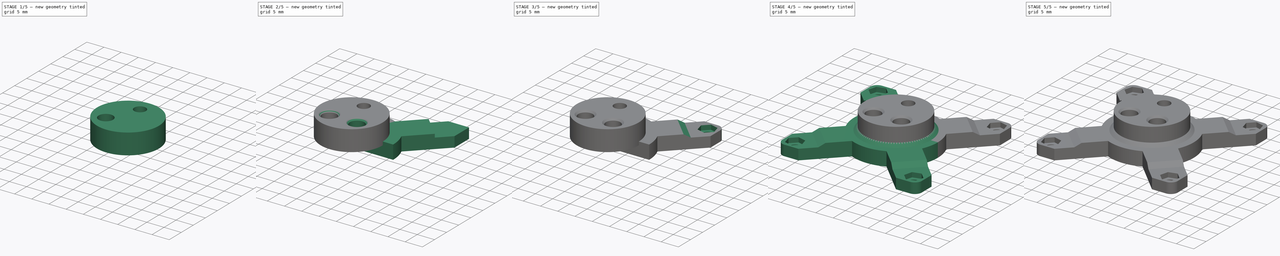
[diagram: build sequence overview — one tinted view per stage of 5, left to right]
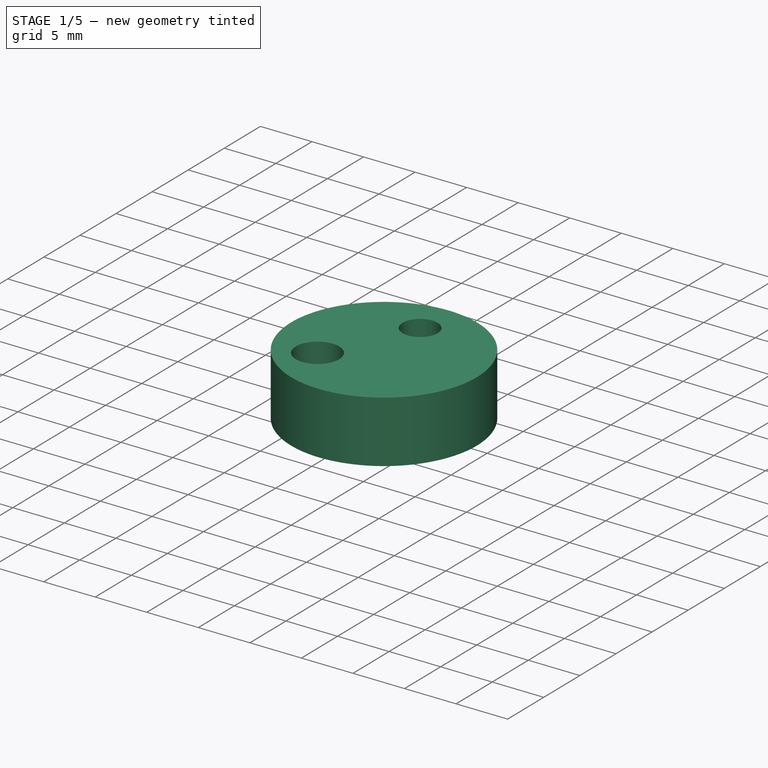
[diagram: stage 1 of 5 — iso view after this stage's code; geometry added in this stage tinted green]
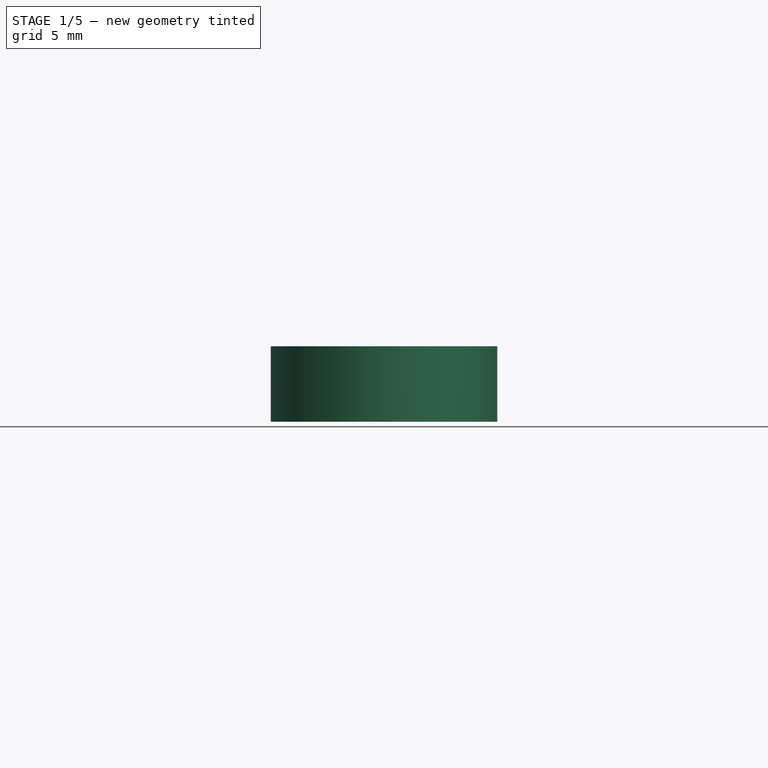
[diagram: stage 1 of 5 — front view after this stage's code; geometry added in this stage tinted green]
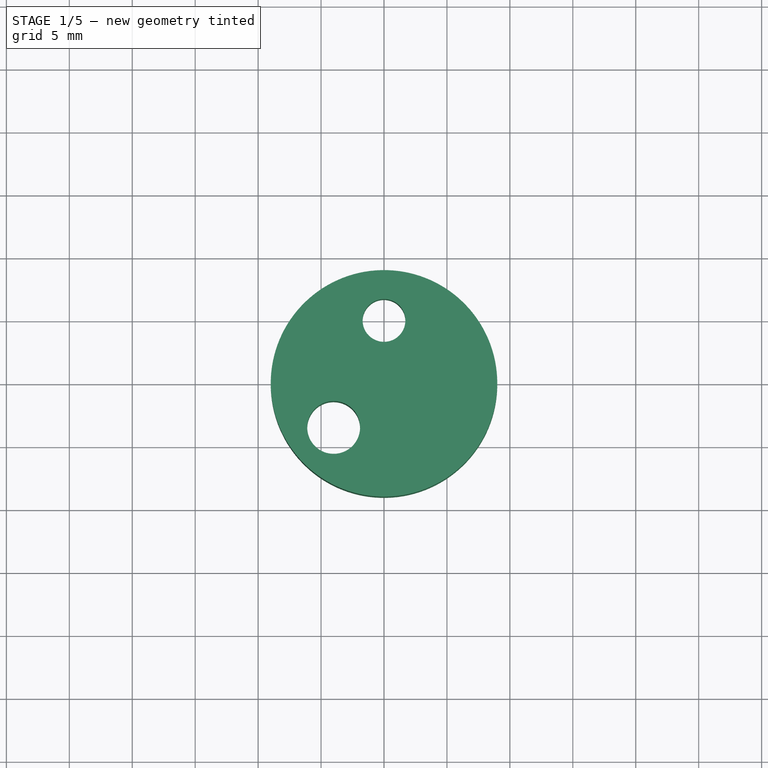
[diagram: stage 1 of 5 — top view after this stage's code; geometry added in this stage tinted green]
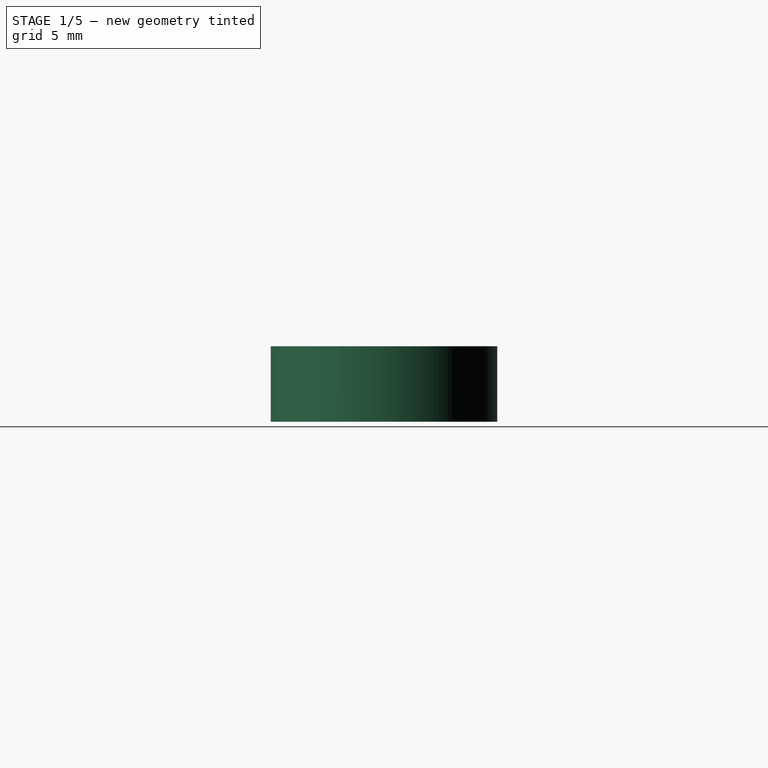
[diagram: stage 1 of 5 — right view after this stage's code; geometry added in this stage tinted green]
FCSTD DOCUMENT  (FreeCAD 0.19R)
Label: flower_direct_workbench
License: All rights reserved
LicenseURL: http://en.wikipedia.org/wiki/All_rights_reserved
objects: Sketcher::SketchObject×11, PartDesign::Pocket×9, PartDesign::ShapeBinder×4, PartDesign::Hole×3, PartDesign::Pad×2, PartDesign::Mirrored×2, PartDesign::Body×2, PartDesign::Fillet×1, PartDesign::PolarPattern×1, PartDesign::Revolution×1, PartDesign::Chamfer×1
note: 54 computed .brp shape members not serialized (recipe doc carries the construction recipe); baked Part::Feature solids carry a one-line shape summary decoded from their .brp

FEATURE [Sketcher::SketchObject] Sketch007  label="rod_base_sk"
  FullyConstrained = true
  MapMode = 5
  Support = -> [XY_Plane001]
  sketch-geometry (1):
    g0: Circle CenterX=0 CenterY=0 CenterZ=0 NormalX=0 NormalY=0 NormalZ=1 AngleXU=0 Radius=9
  constraints (2):
    c: Coincident(g0,g-1)
    c: Radius(g0) = 9
FEATURE [PartDesign::Pad] Pad001  label="rod_base"
  Direction = (1,1,1)
  Length = 12
  Length2 = -6
  Profile = -> Sketch007
  Type = 4
FEATURE [Sketcher::SketchObject] Sketch008  label="M3_hole_sk"
  FullyConstrained = true
  MapMode = 5
  Placement = pos=(0,0,12) rot=(0,0,1;0rad)
  Support = -> [Pad001]
  sketch-geometry (1):
    g0: Circle CenterX=0 CenterY=5 CenterZ=0 NormalX=0 NormalY=0 NormalZ=1 AngleXU=0 Radius=1
  constraints (3):
    c: PointOnObject(g0,g-2)
    c: DistanceY(g-1,g0) = 5
    c: Radius(g0) = 1
FEATURE [PartDesign::Hole] Hole001  label="ped_M3_hole"
  BaseFeature = -> Pad001
  Depth = 1
  DepthType = 1
  Diameter = 3.4
  DrillForDepth = false
  DrillPoint = 1
  DrillPointAngle = 118
  HoleCutCountersinkAngle = 90
  HoleCutCustomValues = false
  HoleCutDepth = 0
  HoleCutDiameter = 6.1
  HoleCutType = 0
  ModelActualThread = false
  Profile = -> Sketch008
  Tapered = false
  TaperedAngle = 90
  ThreadAngle = 0
  ThreadClass = 0
  ThreadCutOffInner = 0
  ThreadCutOffOuter = 0
  ThreadDirection = 0
  ThreadFit = 0
  ThreadPitch = 0
  ThreadSize = 9
  ThreadType = 1
  Threaded = false
FEATURE [PartDesign::Pocket] Pocket006  label="ped_M3_clearance"
  BaseFeature = -> Hole001
  Length = 100
  Length2 = -5
  Profile = -> Sketch009
  Type = 4
FEATURE [Sketcher::SketchObject] Sketch010  label="dowel_hole_sk"
  ExternalGeometry = -> [Pocket006]
  FullyConstrained = true
  MapMode = 5
  Placement = pos=(0,0,12) rot=(0,0,1;0rad)
  Support = -> [Pocket006]
  sketch-geometry (1):
    g0: Circle CenterX=-4 CenterY=-3.5 CenterZ=0 NormalX=0 NormalY=0 NormalZ=1 AngleXU=0 Radius=2.1
  constraints (3):
    c: DistanceY(g0,g-3) = 8.5
    c: Radius(g0) = 2.1
    c: DistanceX(g0,g-1) = 4
FEATURE [PartDesign::Pocket] Pocket007  label="dowel_hole"
  BaseFeature = -> Pocket006
  Length = 5
  Length2 = 100
  Profile = -> Sketch010
  Type = 1
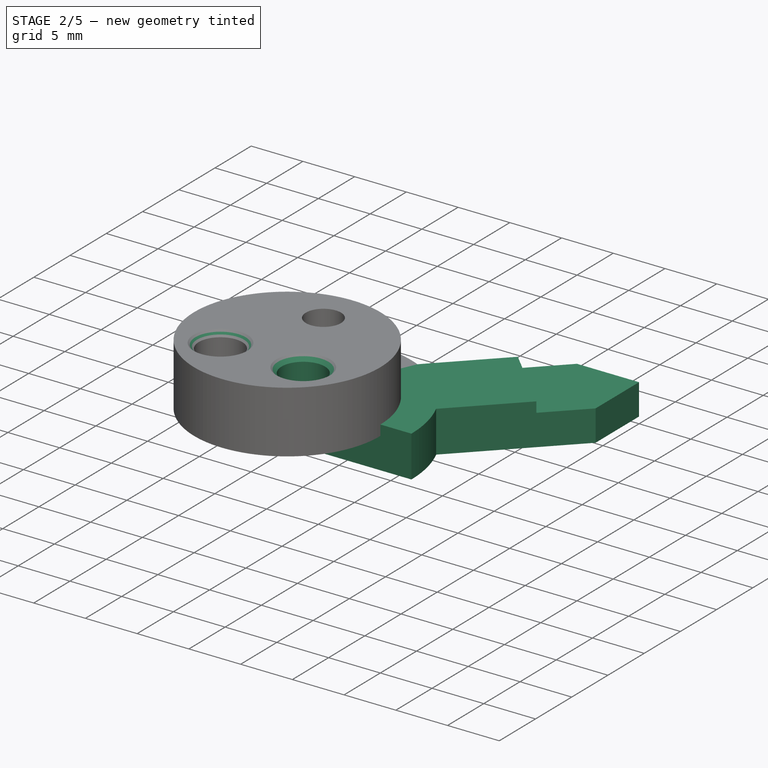
[diagram: stage 2 of 5 — iso view after this stage's code; geometry added in this stage tinted green]
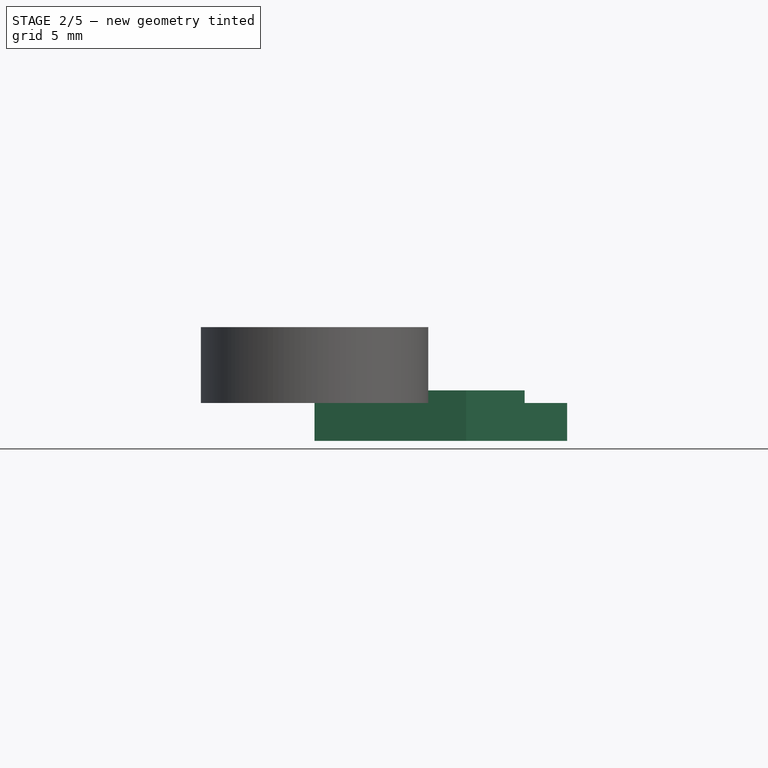
[diagram: stage 2 of 5 — front view after this stage's code; geometry added in this stage tinted green]
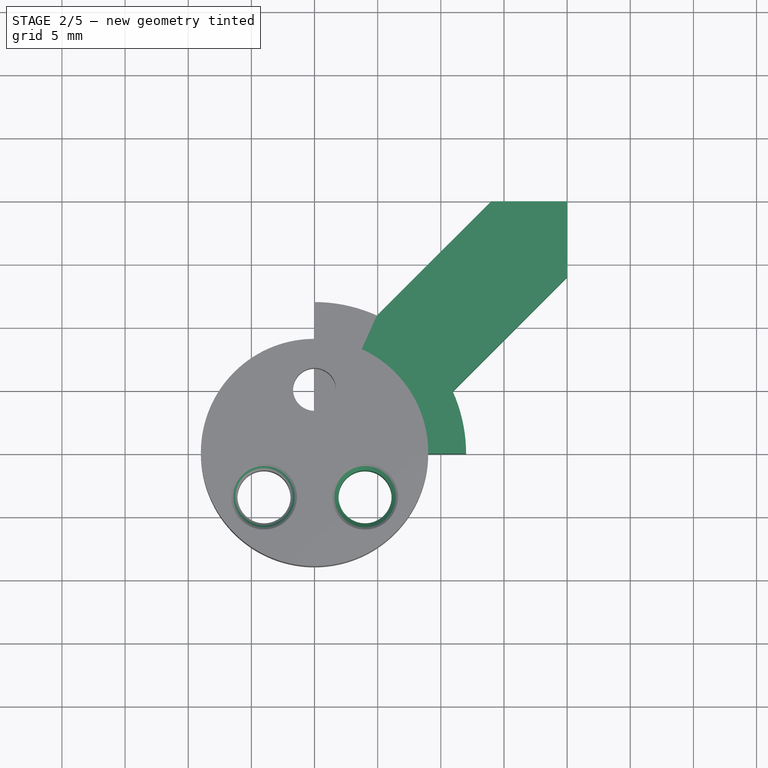
[diagram: stage 2 of 5 — top view after this stage's code; geometry added in this stage tinted green]
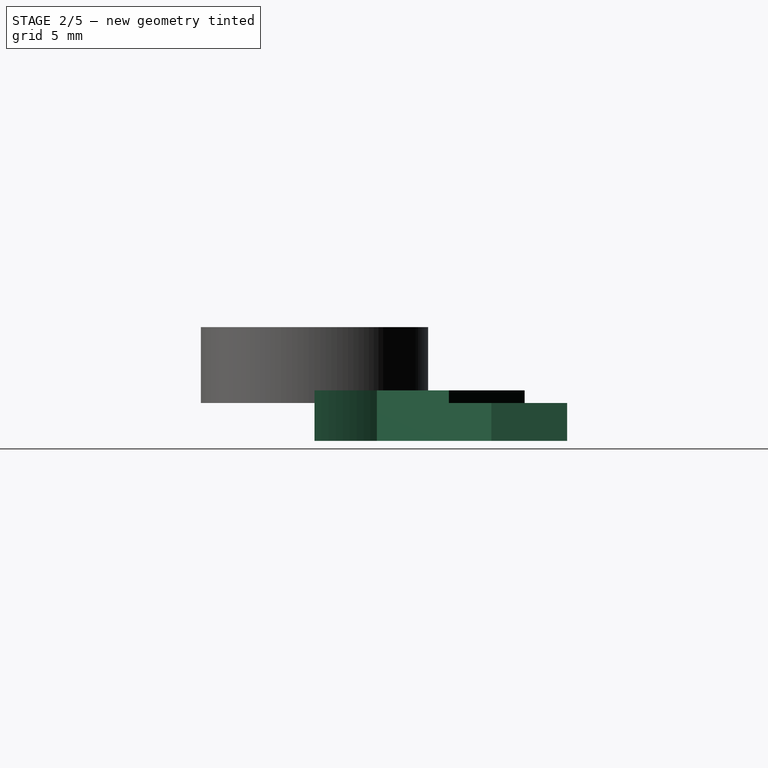
[diagram: stage 2 of 5 — right view after this stage's code; geometry added in this stage tinted green]
FEATURE [Sketcher::SketchObject] Sketch  label="quat_base_sk"
  FullyConstrained = true
  MapMode = 5
  Support = -> [XY_Plane]
  sketch-geometry (9):
    g0: ArcOfCircle CenterX=0 CenterY=0 CenterZ=0 NormalX=0 NormalY=0 NormalZ=1 AngleXU=0 Radius=12 StartAngle=0 EndAngle=0.424031
    g1: LineSegment StartX=20 StartY=20 StartZ=0 EndX=20 EndY=14 EndZ=0
    g2: LineSegment StartX=20 StartY=20 StartZ=0 EndX=14 EndY=20 EndZ=0
    g3: LineSegment StartX=0 StartY=0 StartZ=0 EndX=20 EndY=20 EndZ=0
    g4: LineSegment StartX=10.9373 StartY=4.93725 StartZ=0 EndX=20 EndY=14 EndZ=0
    g5: LineSegment StartX=14 StartY=20 StartZ=0 EndX=4.93725 EndY=10.9373 EndZ=0
    g6: LineSegment StartX=7e-16 StartY=12 StartZ=0 EndX=0 EndY=0 EndZ=0
    g7: LineSegment StartX=0 StartY=0 StartZ=0 EndX=12 EndY=0 EndZ=0
    g8: ArcOfCircle CenterX=0 CenterY=0 CenterZ=0 NormalX=0 NormalY=0 NormalZ=1 AngleXU=0 Radius=12 StartAngle=1.14677 EndAngle=1.5708
  constraints (26):
    c: Coincident(g0,g-1)
    c: PointOnObject(g8,g-2)
    c: PointOnObject(g0,g-1)
    c: Radius(g0) = 12
    c: Vertical(g1)
    c: Coincident(g2,g1)
    c: Horizontal(g2)
    c: DistanceX(g-2,g1) = 20
    c: DistanceY(g-1,g1) = 20
    c: Distance(g1) = 6
    c: Distance(g2) = 6
    c: Coincident(g3,g0)
    c: Coincident(g3,g1)
    c: Coincident(g4,g1)
    c: Coincident(g5,g2)
    c: PointOnObject(g5,g0)
    c: Parallel(g3,g4)
    c: Parallel(g4,g5)
    c: Coincident(g6,g8)
    c: Coincident(g6,g0)
    c: Coincident(g7,g0)
    c: Coincident(g7,g0)
    c: Equal(g0,g8)
    c: Coincident(g0,g4)
    c: Coincident(g0,g8)
    c: PointOnObject(g8,g5)
FEATURE [PartDesign::Pad] Pad  label="quat_base"
  Direction = (1,1,1)
  Length = 7
  Length2 = -3
  Profile = -> Sketch
  Type = 4
FEATURE [Sketcher::SketchObject] Sketch001  label="thumb_hole_sk"
  ExternalGeometry = -> [Pad]
  FullyConstrained = true
  MapMode = 5
  Placement = pos=(0,0,7) rot=(0,0,1;0rad)
  Support = -> [Pad]
  sketch-geometry (5):
    g0: LineSegment StartX=10.636 StartY=16.636 StartZ=0 EndX=16.636 EndY=10.636 EndZ=0
    g1: LineSegment StartX=16.636 StartY=10.636 StartZ=0 EndX=20 EndY=14 EndZ=0
    g2: LineSegment StartX=20 StartY=14 StartZ=0 EndX=20 EndY=20 EndZ=0
    g3: LineSegment StartX=20 StartY=20 StartZ=0 EndX=14 EndY=20 EndZ=0
    g4: LineSegment StartX=14 StartY=20 StartZ=0 EndX=10.636 EndY=16.636 EndZ=0
  constraints (12):
    c: PointOnObject(g0,g-6)
    c: PointOnObject(g0,g-5)
    c: Coincident(g0,g1)
    c: Coincident(g1,g-5)
    c: Coincident(g1,g2)
    c: Coincident(g2,g-4)
    c: Coincident(g2,g3)
    c: Coincident(g3,g-6)
    c: Coincident(g3,g4)
    c: Coincident(g4,g0)
    c: Perpendicular(g-5,g0)
    c: Distance(g2,g0) = 9
FEATURE [PartDesign::Pocket] Pocket  label="thumb_hole"
  BaseFeature = -> Pad
  Length = 1
  Length2 = 100
  Profile = -> Sketch001
  Type = 0
FEATURE [PartDesign::Mirrored] Mirrored001  label="dual_dowel_hole"
  BaseFeature = -> Pocket007
  MirrorPlane = -> YZ_Plane001
  Originals = -> [Pocket007]
FEATURE [PartDesign::Body] Body  label="flower"
  Group = -> [Sketch,Pad,Sketch001,Pocket,Sketch002,Pocket001,Sketch003,Hole,Fillet,Sketch004,Pocket002,PolarPattern,Sketch005,Pocket003,Mirrored,Sketch006,Revolution,ShapeBinder,Hole002,ShapeBinder001,Pocket005,ShapeBinder002,ShapeBinder003,Pocket008,Pocket009]
  Origin = -> Origin
  Placement = pos=(0,0,0) rot=(0.7074,0.706616,-0.016708;0.066825rad)
  Tip = -> Pocket009
FEATURE [PartDesign::Chamfer] Chamfer  label="dual_dowel_chamfer"
  Angle = 45
  Base = -> Mirrored001 [Edge8,Edge7]
  BaseFeature = -> Mirrored001
  ChamferType = 0
  FlipDirection = false
  Size = 0.5
  Size2 = 1
  SupportTransform = false
FEATURE [PartDesign::Body] Body001  label="peduncle"
  Group = -> [Sketch007,Pad001,Sketch008,Hole001,Sketch009,Pocket006,Sketch010,Pocket007,Mirrored001,Chamfer]
  Origin = -> Origin001
  Tip = -> Chamfer
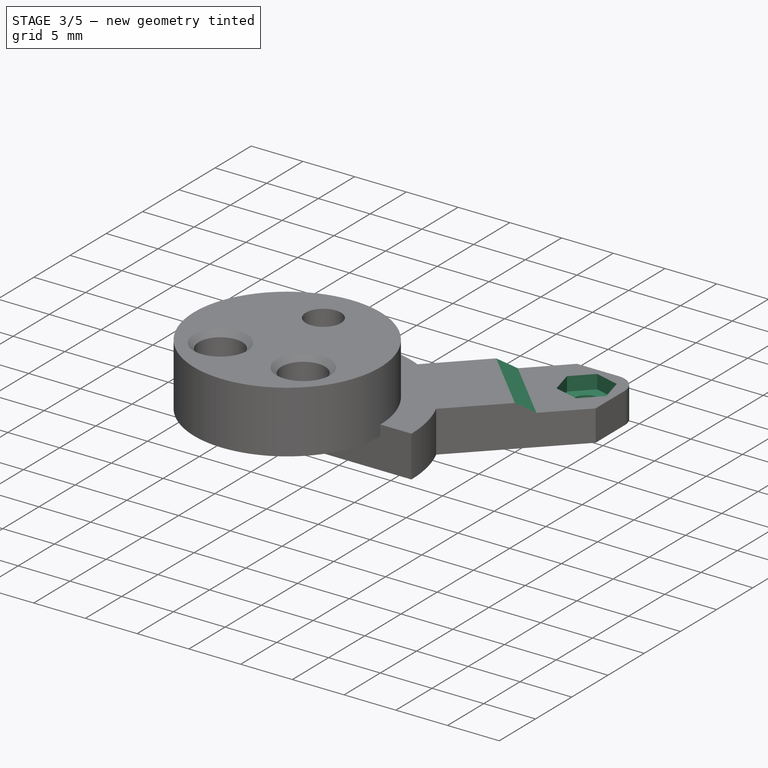
[diagram: stage 3 of 5 — iso view after this stage's code; geometry added in this stage tinted green]
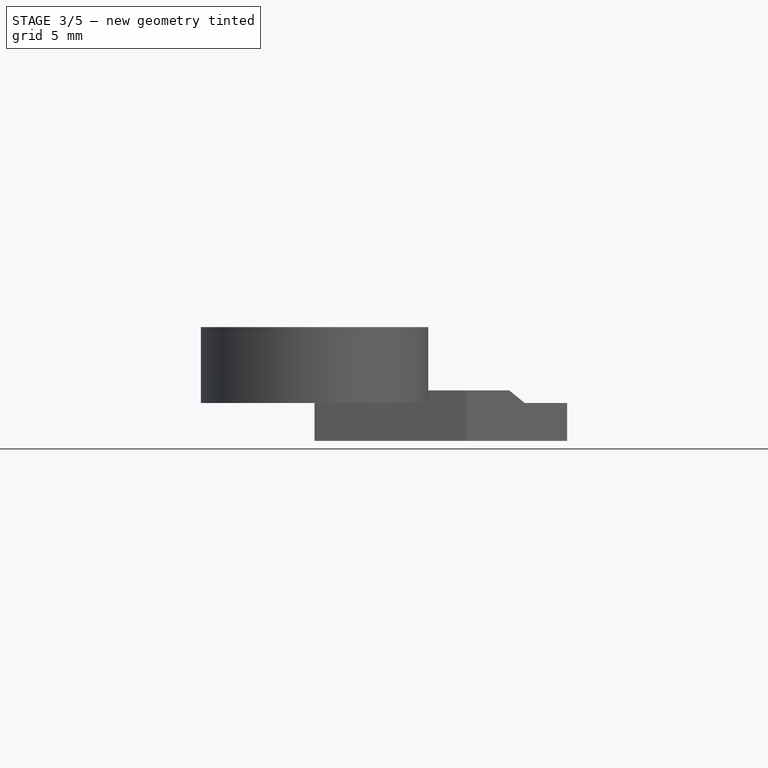
[diagram: stage 3 of 5 — front view after this stage's code; geometry added in this stage tinted green]
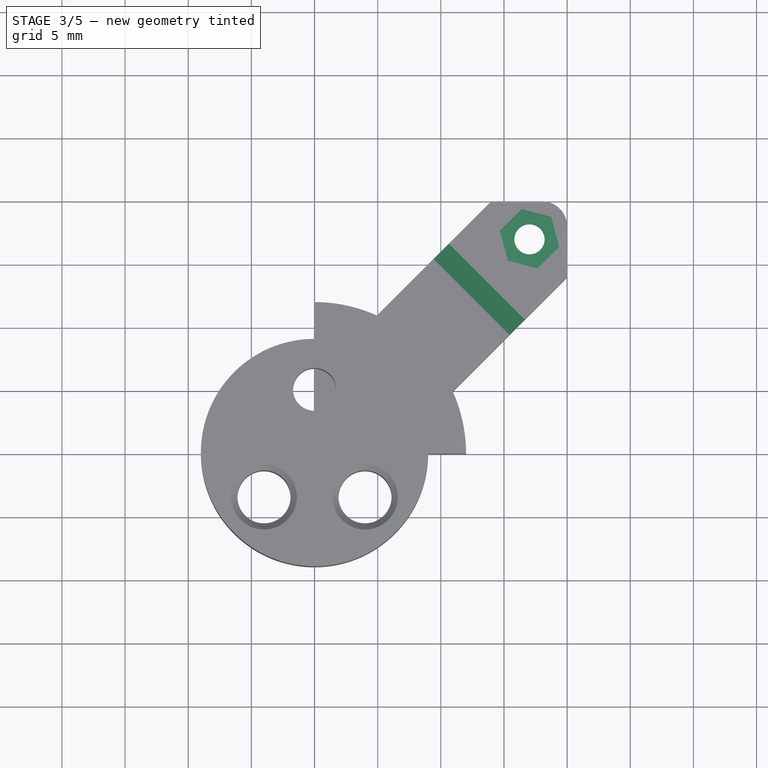
[diagram: stage 3 of 5 — top view after this stage's code; geometry added in this stage tinted green]
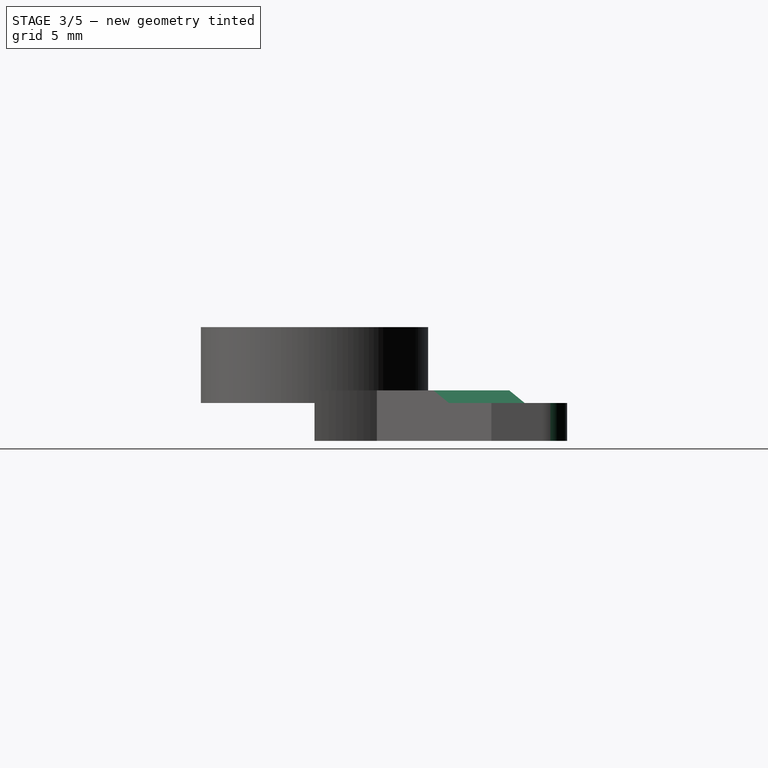
[diagram: stage 3 of 5 — right view after this stage's code; geometry added in this stage tinted green]
FEATURE [Sketcher::SketchObject] Sketch002  label="M2_hex_countersink_sk"
  ExternalGeometry = -> [Pocket]
  FullyConstrained = true
  MapMode = 5
  Placement = pos=(0,0,6) rot=(0,0,1;0rad)
  Support = -> [Pocket]
  sketch-geometry (7):
    g0: LineSegment StartX=18.7346 StartY=18.7346 StartZ=0 EndX=16.3924 EndY=19.3622 EndZ=0
    g1: LineSegment StartX=16.3924 StartY=19.3622 StartZ=0 EndX=14.6778 EndY=17.6476 EndZ=0
    g2: LineSegment StartX=14.6778 StartY=17.6476 StartZ=0 EndX=15.3054 EndY=15.3054 EndZ=0
    g3: LineSegment StartX=15.3054 StartY=15.3054 StartZ=0 EndX=17.6476 EndY=14.6778 EndZ=0
    g4: LineSegment StartX=17.6476 StartY=14.6778 StartZ=0 EndX=19.3622 EndY=16.3924 EndZ=0
    g5: LineSegment StartX=19.3622 StartY=16.3924 StartZ=0 EndX=18.7346 EndY=18.7346 EndZ=0
    g6: Circle CenterX=17.02 CenterY=17.02 CenterZ=0 NormalX=0 NormalY=0 NormalZ=1 AngleXU=0 Radius=2.42487
  constraints (17):
    c: Coincident(g0,g1)
    c: Coincident(g1,g2)
    c: Coincident(g2,g3)
    c: Coincident(g3,g4)
    c: Coincident(g4,g5)
    c: Coincident(g5,g0)
    c: Equal(g0, g1-g5) x5
    c: PointOnObject(g0,g6)
    c: PointOnObject(g1,g6)
    c: PointOnObject(g2,g6)
    c: PointOnObject(g3,g6)
    c: PointOnObject(g4,g6)
    c: PointOnObject(g5,g6)
    c: DistanceX(g-2,g6) = 17.02
    c: DistanceY(g-1,g6) = 17.02
    c: Parallel(g4,g-3)
    c: Distance(g3,g1) = 4.2
FEATURE [PartDesign::Pocket] Pocket001  label="M2_hex_countersink"
  BaseFeature = -> Pocket
  Length = 1.35
  Length2 = 100
  Profile = -> Sketch002
  Type = 0
FEATURE [Sketcher::SketchObject] Sketch003  label="M2_hole_sk"
  ExternalGeometry = -> [Pocket001]
  FullyConstrained = true
  MapMode = 5
  Placement = pos=(0,0,4.65) rot=(0,0,1;0rad)
  Support = -> [Pocket001]
  sketch-geometry (1):
    g0: Circle CenterX=17.02 CenterY=17.02 CenterZ=0 NormalX=0 NormalY=0 NormalZ=1 AngleXU=0 Radius=1
  constraints (2):
    c: Symmetric(g-4,g-3,g0)
    c: Radius(g0) = 1
FEATURE [PartDesign::Hole] Hole  label="M2_hole"
  BaseFeature = -> Pocket001
  Depth = 25
  DepthType = 1
  Diameter = 2.4
  DrillForDepth = false
  DrillPoint = 1
  DrillPointAngle = 118
  HoleCutCountersinkAngle = 90
  HoleCutCustomValues = false
  HoleCutDepth = 0
  HoleCutDiameter = 6.1
  HoleCutType = 0
  ModelActualThread = false
  Profile = -> Sketch003
  Tapered = false
  TaperedAngle = 90
  ThreadAngle = 0
  ThreadClass = 0
  ThreadCutOffInner = 0
  ThreadCutOffOuter = 0
  ThreadDirection = 0
  ThreadFit = 0
  ThreadPitch = 0
  ThreadSize = 6
  ThreadType = 1
  Threaded = false
FEATURE [PartDesign::Fillet] Fillet  label="corner_fillet"
  Base = -> Hole [Edge4]
  BaseFeature = -> Hole
  Radius = 2
  SupportTransform = false
FEATURE [Sketcher::SketchObject] Sketch004  label="slope_sk"
  ExternalGeometry = -> [Fillet]
  FullyConstrained = true
  MapMode = 5
  Placement = pos=(-3,3,0) rot=(-0.281085,0.678598,0.678598;3.68962rad)
  Support = -> [Fillet]
  sketch-geometry (3):
    g0: LineSegment StartX=-19.2843 StartY=6 StartZ=0 EndX=-17.5522 EndY=7 EndZ=0
    g1: LineSegment StartX=-17.5522 StartY=7 StartZ=0 EndX=-19.2843 EndY=7 EndZ=0
    g2: LineSegment StartX=-19.2843 StartY=7 StartZ=0 EndX=-19.2843 EndY=6 EndZ=0
  constraints (7):
    c: Coincident(g-3,g0)
    c: PointOnObject(g0,g-4)
    c: Coincident(g0,g1)
    c: Coincident(g1,g-4)
    c: Coincident(g2,g1)
    c: Coincident(g2,g0)
    c: Angle(g1,g0) = 0.523599
FEATURE [PartDesign::Pocket] Pocket002  label="slope"
  BaseFeature = -> Fillet
  Length = 5
  Length2 = 100
  Profile = -> Sketch004
  Type = 1
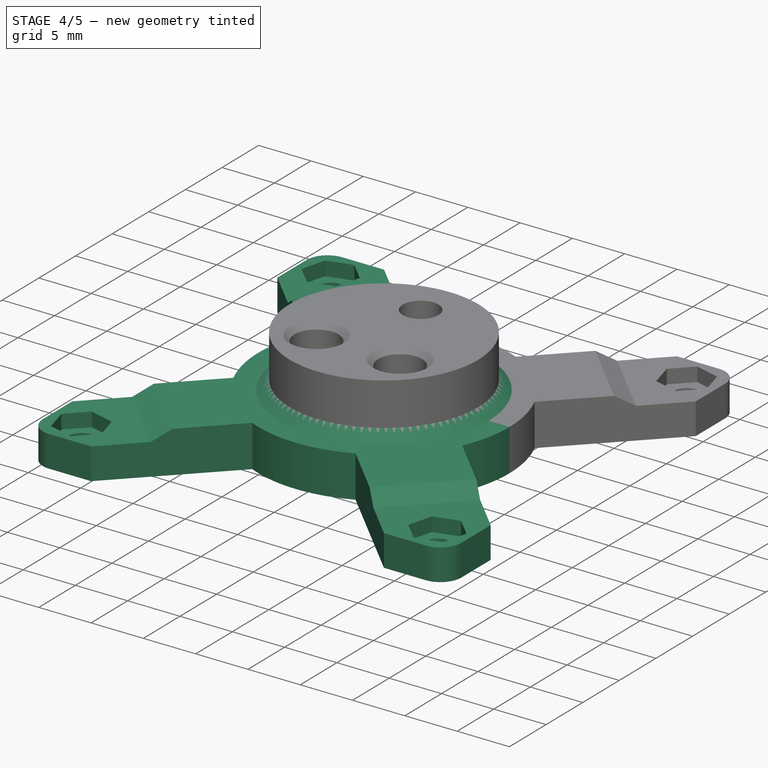
[diagram: stage 4 of 5 — iso view after this stage's code; geometry added in this stage tinted green]
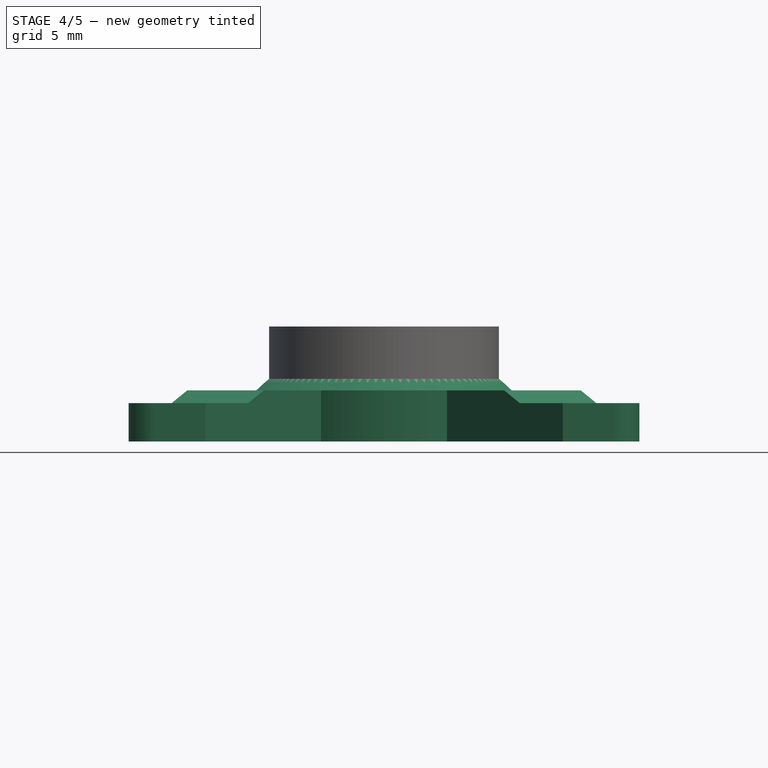
[diagram: stage 4 of 5 — front view after this stage's code; geometry added in this stage tinted green]
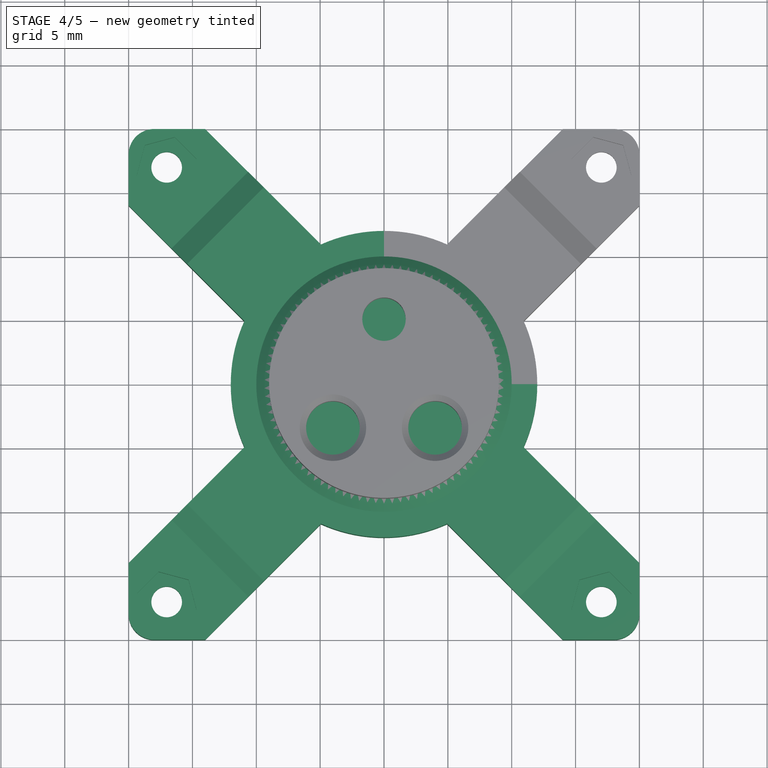
[diagram: stage 4 of 5 — top view after this stage's code; geometry added in this stage tinted green]
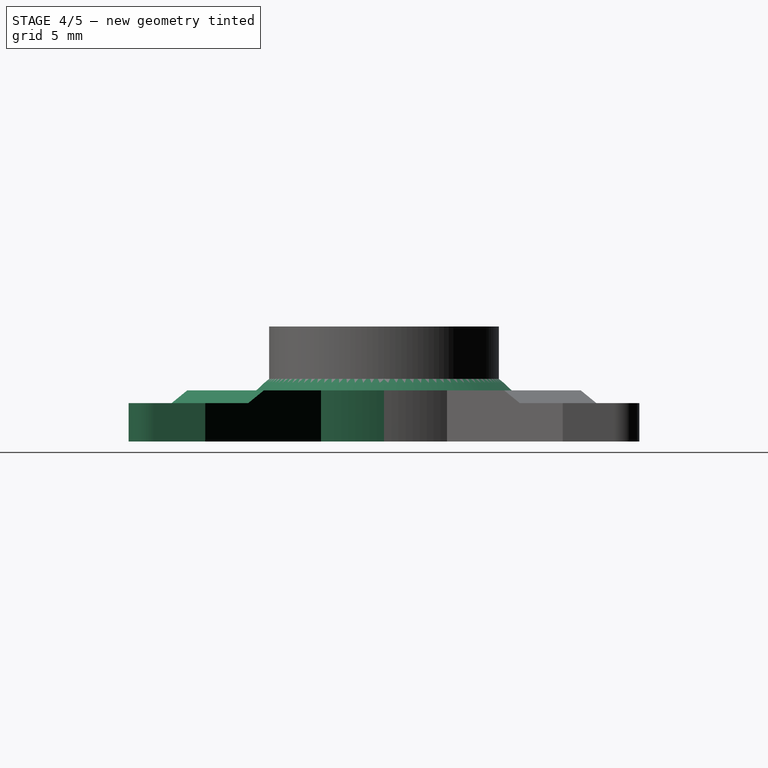
[diagram: stage 4 of 5 — right view after this stage's code; geometry added in this stage tinted green]
FEATURE [PartDesign::PolarPattern] PolarPattern  label="flower_body"
  Angle = 360
  Axis = -> Sketch [N_Axis]
  BaseFeature = -> Pocket002
  Occurrences = 4
  Originals = -> [Pad,Pocket,Pocket001,Hole,Fillet,Pocket002]
FEATURE [Sketcher::SketchObject] Sketch005  label="lens_screw_hole_sk"
  FullyConstrained = true
  MapMode = 5
  Placement = pos=(0,0,3) rot=(1,0,0;3.14159rad)
  Support = -> [PolarPattern]
  sketch-geometry (1):
    g0: Circle CenterX=-9 CenterY=0 CenterZ=0 NormalX=0 NormalY=0 NormalZ=1 AngleXU=0 Radius=2
  constraints (3):
    c: PointOnObject(g0,g-1)
    c: Radius(g0) = 2
    c: DistanceX(g-2,g0) = -9
FEATURE [PartDesign::Pocket] Pocket003  label="lens_screw_hole"
  BaseFeature = -> PolarPattern
  Length = 1.5
  Length2 = 100
  Profile = -> Sketch005
  Type = 0
FEATURE [PartDesign::Mirrored] Mirrored  label="dual_lens_screw_hole"
  BaseFeature = -> Pocket003
  MirrorPlane = -> YZ_Plane
  Originals = -> [Pocket003]
FEATURE [Sketcher::SketchObject] Sketch006  label="sepal_sk"
  ExternalGeometry = -> [Mirrored]
  FullyConstrained = true
  MapMode = 5
  Placement = pos=(0,0,0) rot=(1,0,0;1.5708rad)
  Support = -> [XZ_Plane]
  sketch-geometry (4):
    g0: ArcOfCircle CenterX=0 CenterY=-3 CenterZ=0 NormalX=0 NormalY=0 NormalZ=1 AngleXU=0 Radius=14.1421 StartAngle=0.785398 EndAngle=0.969532
    g1: LineSegment StartX=0 StartY=7 StartZ=0 EndX=10 EndY=7 EndZ=0
    g2: LineSegment StartX=0 StartY=7 StartZ=0 EndX=0 EndY=8.6619 EndZ=0
    g3: LineSegment StartX=0 StartY=8.6619 StartZ=0 EndX=8 EndY=8.6619 EndZ=0
  constraints (12):
    c: DistanceY(g-1,g0) = -3
    c: PointOnObject(g0,g-3)
    c: Coincident(g1,g0)
    c: DistanceX(g-1,g0) = 10
    c: PointOnObject(g0,g-2)
    c: Coincident(g1,g-3)
    c: Coincident(g2,g1)
    c: PointOnObject(g2,g-2)
    c: Coincident(g3,g2)
    c: Coincident(g3,g0)
    c: Horizontal(g3)
    c: DistanceX(g0,g0) = 2
FEATURE [PartDesign::Revolution] Revolution  label="sepal"
  Angle = 360
  Axis = (-3e-16,3e-16,1)
  Base = (0,0,0)
  BaseFeature = -> Mirrored
  Profile = -> Sketch006
  ReferenceAxis = -> Z_Axis
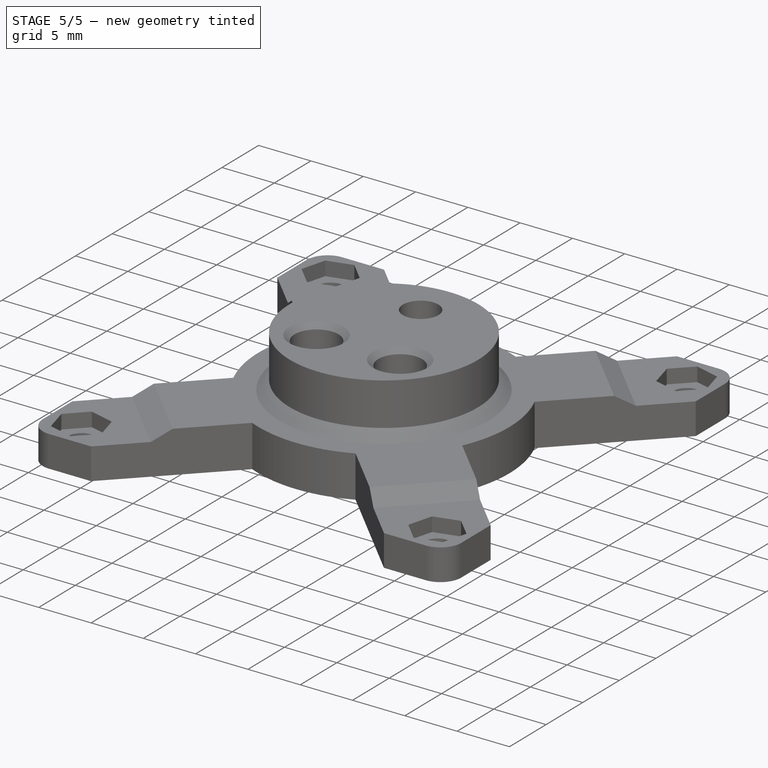
[diagram: stage 5 of 5 — iso view after this stage's code; geometry added in this stage tinted green]
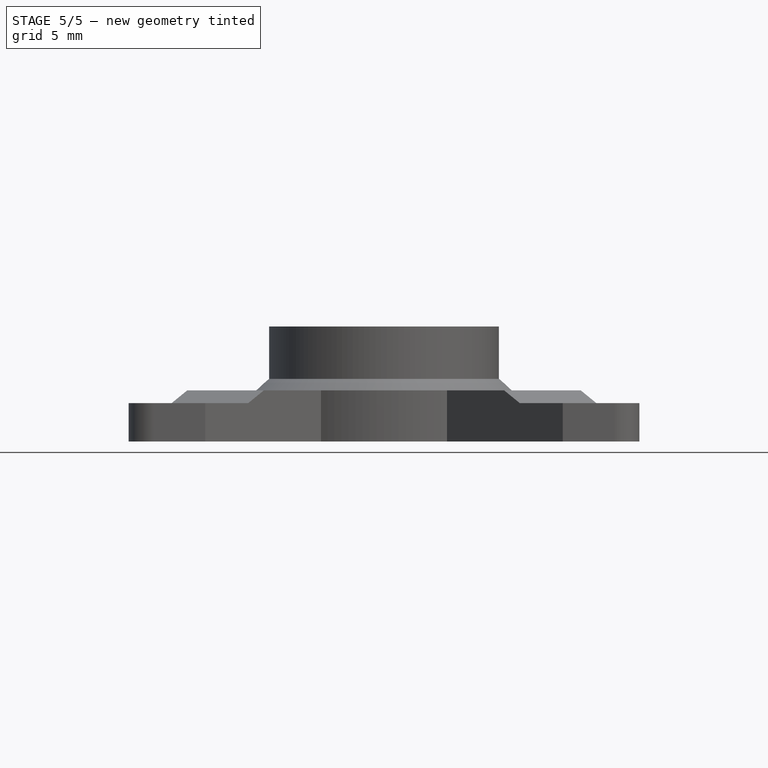
[diagram: stage 5 of 5 — front view after this stage's code; geometry added in this stage tinted green]
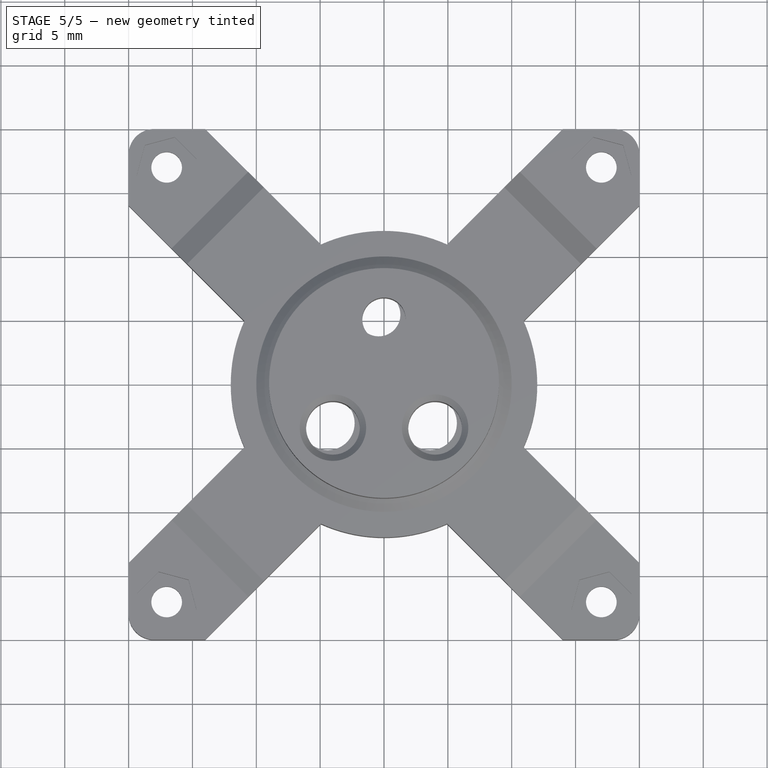
[diagram: stage 5 of 5 — top view after this stage's code; geometry added in this stage tinted green]
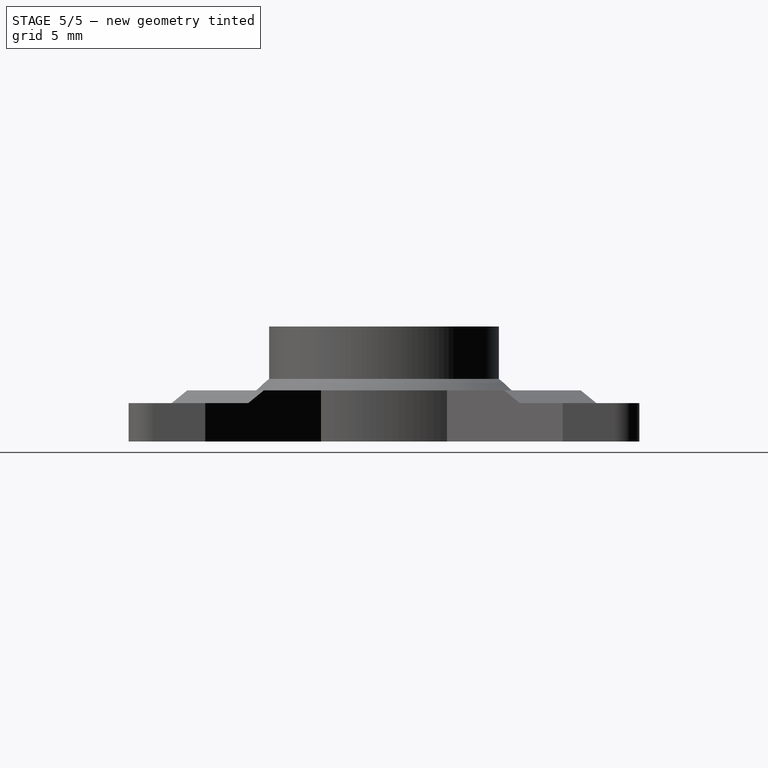
[diagram: stage 5 of 5 — right view after this stage's code; geometry added in this stage tinted green]
FEATURE [Sketcher::SketchObject] Sketch009  label="M3_clearance_sk"
  ExternalGeometry = -> [Hole001]
  FullyConstrained = true
  MapMode = 5
  Placement = pos=(0,0,12) rot=(0,0,1;0rad)
  Support = -> [Hole001]
  sketch-geometry (1):
    g0: Circle CenterX=0 CenterY=5 CenterZ=0 NormalX=0 NormalY=0 NormalZ=1 AngleXU=0 Radius=3.8
  constraints (2):
    c: Coincident(g0,g-3)
    c: Radius(g0) = 3.8
FEATURE [PartDesign::ShapeBinder] ShapeBinder001  label="M3_clearance_binder"
  Placement = pos=(-0.566533,0.566528,11.9732) rot=(-0.7074,-0.706616,0.016708;0.066825rad)
  Support = -> [Sketch009]
  TraceSupport = true
FEATURE [PartDesign::ShapeBinder] ShapeBinder  label="M3_hole_binder"
  Placement = pos=(-0.566533,5.56094,11.7369) rot=(-0.7074,-0.706616,0.016708;0.066825rad)
  Support = -> [Hole001]
  TraceSupport = true
FEATURE [PartDesign::Hole] Hole002  label="flower_M3_hole"
  BaseFeature = -> Revolution
  Depth = 25
  DepthType = 1
  Diameter = 3.4
  DrillForDepth = false
  DrillPoint = 1
  DrillPointAngle = 118
  HoleCutCountersinkAngle = 90
  HoleCutCustomValues = false
  HoleCutDepth = 0
  HoleCutDiameter = 6.1
  HoleCutType = 0
  ModelActualThread = false
  Profile = -> ShapeBinder
  Reversed = true
  Tapered = false
  TaperedAngle = 90
  ThreadAngle = 0
  ThreadClass = 0
  ThreadCutOffInner = 0
  ThreadCutOffOuter = 0
  ThreadDirection = 0
  ThreadFit = 0
  ThreadPitch = 0
  ThreadSize = 9
  ThreadType = 1
  Threaded = false
FEATURE [PartDesign::Pocket] Pocket005  label="flower_M3_clearance"
  BaseFeature = -> Hole002
  Length = 100
  Length2 = -5
  Profile = -> ShapeBinder001
  Type = 4
FEATURE [PartDesign::ShapeBinder] ShapeBinder002  label="dowel_hole_binder_1"
  Placement = pos=(-0.566533,0.566528,11.9732) rot=(-0.7074,-0.706616,0.016708;0.066825rad)
  Support = -> [Mirrored001]
  TraceSupport = true
FEATURE [PartDesign::ShapeBinder] ShapeBinder003  label="dowel_hole_binder_2"
  Placement = pos=(-0.566533,0.566528,11.9732) rot=(-0.7074,-0.706616,0.016708;0.066825rad)
  Support = -> [Mirrored001]
  TraceSupport = true
FEATURE [PartDesign::Pocket] Pocket008  label="dowel_hole_1"
  BaseFeature = -> Pocket005
  Length = 5
  Length2 = 100
  Profile = -> ShapeBinder002
  Reversed = true
  Type = 1
FEATURE [PartDesign::Pocket] Pocket009  label="dowel_hole_2"
  BaseFeature = -> Pocket008
  Length = 5
  Length2 = 100
  Profile = -> ShapeBinder003
  Reversed = true
  Type = 1
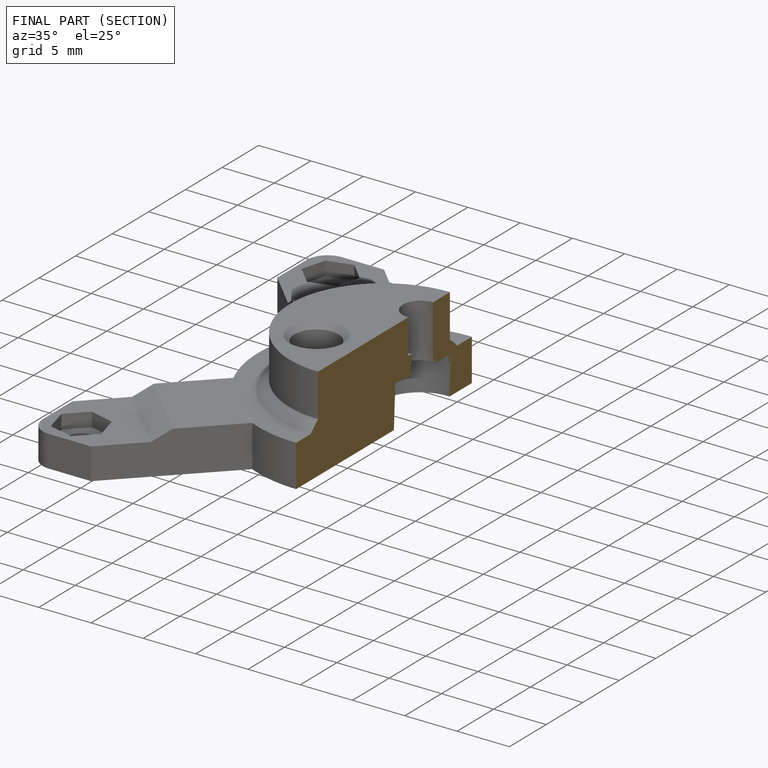
[diagram: finished part — half-section view (interior)]
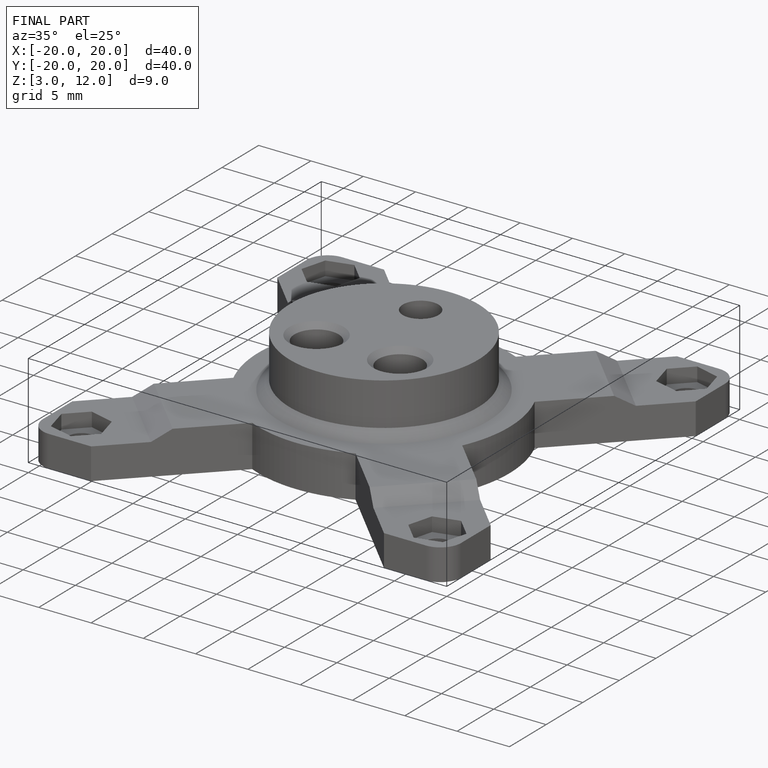
[diagram: finished part — iso view with bounding-box wireframe]
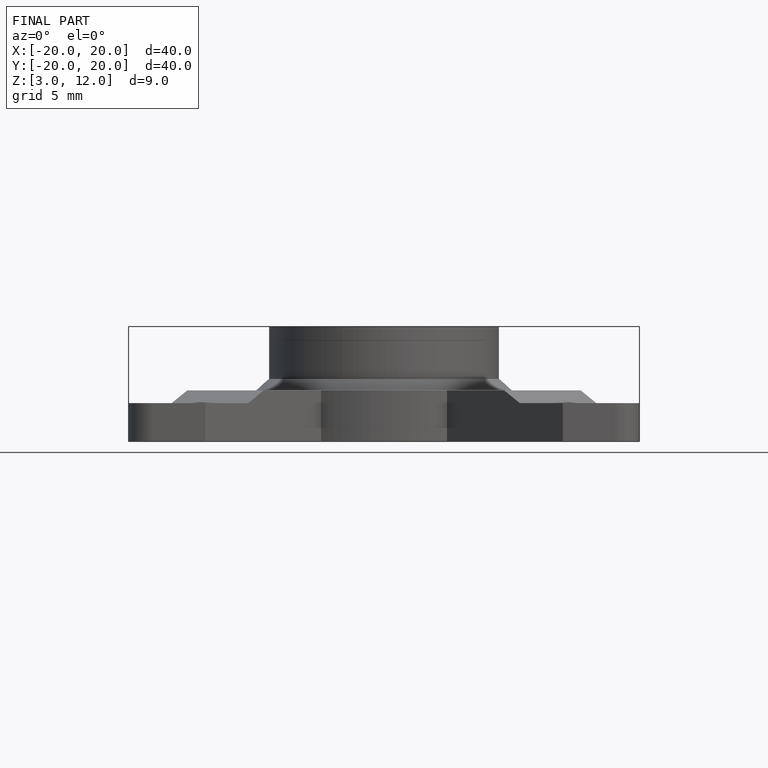
[diagram: finished part — front view with bounding-box wireframe]
